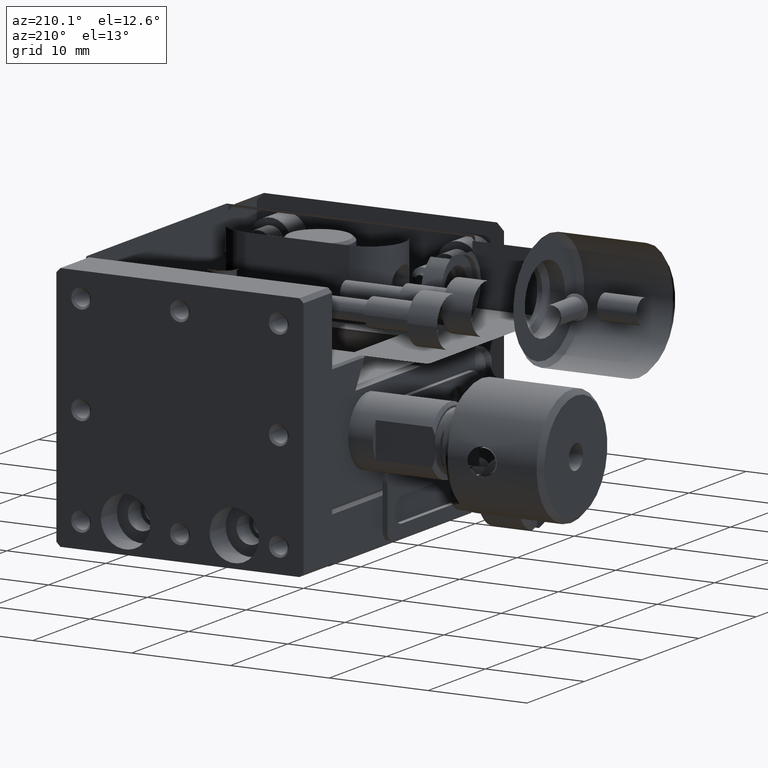
[diagram: clean part render]
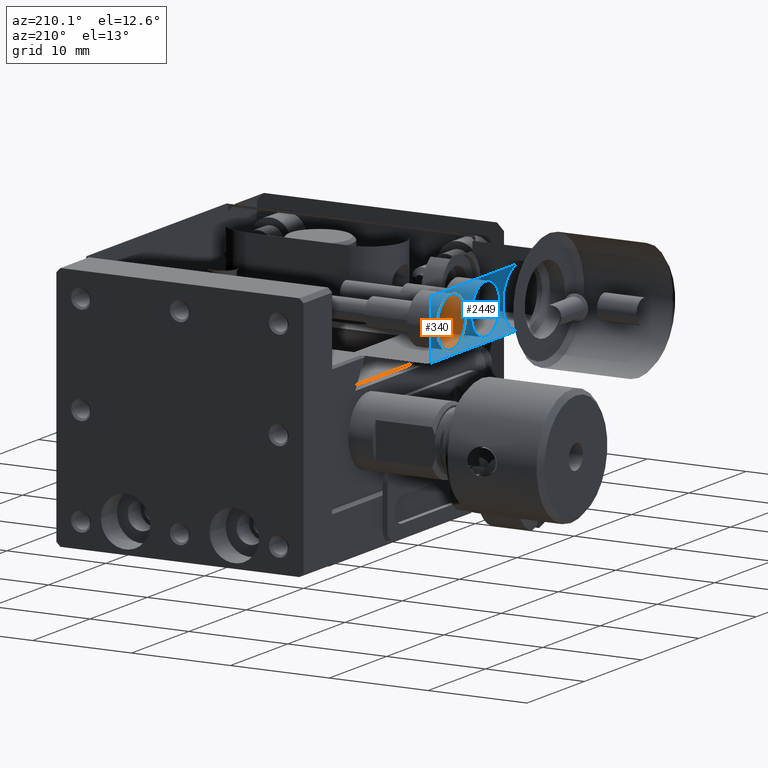
[diagram: same view with the hole feature highlighted: cylindrical wall and planar end face, labeled with their STEP entity ids]
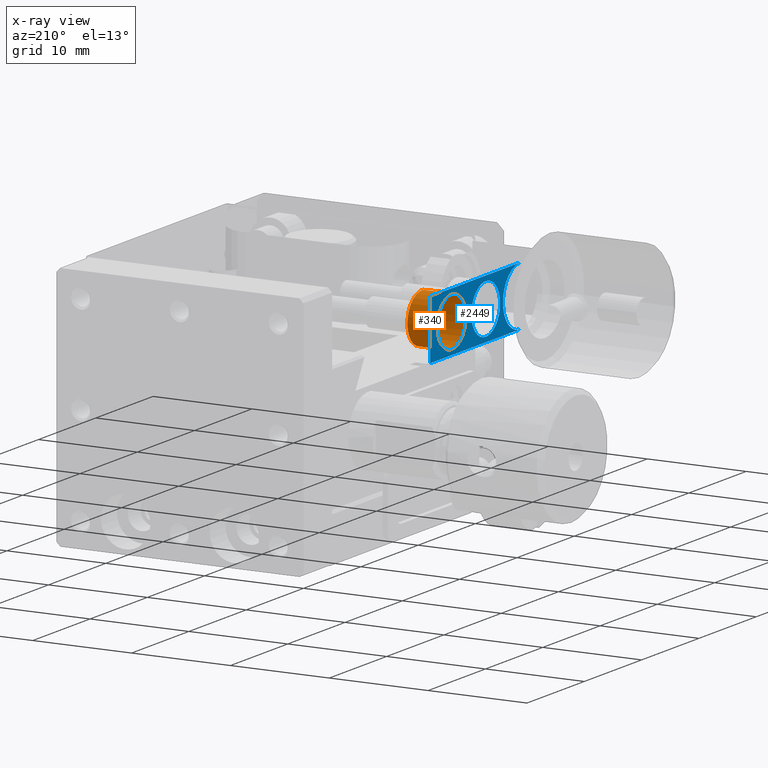
[diagram: x-ray of the same camera — body ghosted, the hole faces saturated]
A machine part, auxiliary view. The highlighted faces form one hole feature of diameter 5 mm: the cylindrical wall (entity #340, orange) and its adjacent planar end face (entity #2449, blue) — they share a circular edge in the B-rep.
The next image is the same camera in x-ray (body ghosted, the hole faces saturated) — the bore reads through the body.
Wall:
#62 = ORIENTED_EDGE ( 'NONE', *, *, #7502, .T. ) ;
#70 = CIRCLE ( 'NONE', #6276, 2.500000000000002220 ) ;
#340 = ADVANCED_FACE ( 'NONE', ( #3688, #6599 ), #753, .T. ) ;
#346 = ORIENTED_EDGE ( 'NONE', *, *, #8977, .F. ) ;
#349 = CIRCLE ( 'NONE', #9133, 2.500000000000002220 ) ;
#372 = EDGE_LOOP ( 'NONE', ( #62 ) ) ;
#466 = EDGE_LOOP ( 'NONE', ( #346 ) ) ;
#656 = CARTESIAN_POINT ( 'NONE',  ( -8.000000000000000000, 40.50000000000000000, -3.500000000000000000 ) ) ;
#702 = CARTESIAN_POINT ( 'NONE',  ( -8.000000000000000000, 38.00000000000000000, -3.500000000000000000 ) ) ;
#753 = CYLINDRICAL_SURFACE ( 'NONE', #1624, 2.500000000000002220 ) ;
#1624 = AXIS2_PLACEMENT_3D ( 'NONE', #702, #8726, #3639 ) ;
#2176 = VERTEX_POINT ( 'NONE', #656 ) ;
#2323 = VERTEX_POINT ( 'NONE', #2417 ) ;
#2417 = CARTESIAN_POINT ( 'NONE',  ( -5.000000000000000000, 40.50000000000000711, -3.500000000000000000 ) ) ;
#3639 = DIRECTION ( 'NONE',  ( -1.387778780781444492E-15, 1.000000000000000000, 0.000000000000000000 ) ) ;
#3688 = FACE_OUTER_BOUND ( 'NONE', #372, .T. ) ;
#3743 = DIRECTION ( 'NONE',  ( -1.387778780781444492E-15, 1.000000000000000000, 0.000000000000000000 ) ) ;
#5309 = DIRECTION ( 'NONE',  ( -1.000000000000000000, -1.646397119512899904E-15, -0.000000000000000000 ) ) ;
#6276 = AXIS2_PLACEMENT_3D ( 'NONE', #6700, #8875, #3743 ) ;
#6315 = CARTESIAN_POINT ( 'NONE',  ( -4.999999999999995559, 38.00000000000000711, -3.500000000000000000 ) ) ;
#6599 = FACE_OUTER_BOUND ( 'NONE', #466, .T. ) ;
#6700 = CARTESIAN_POINT ( 'NONE',  ( -7.999999999999996447, 38.00000000000000000, -3.500000000000000000 ) ) ;
#7502 = EDGE_CURVE ( 'NONE', #2323, #2323, #349, .T. ) ;
#7589 = DIRECTION ( 'NONE',  ( -1.734723475976805517E-15, 1.000000000000000000, 0.000000000000000000 ) ) ;
#8726 = DIRECTION ( 'NONE',  ( -1.000000000000000000, -1.646397119512899904E-15, -0.000000000000000000 ) ) ;
#8875 = DIRECTION ( 'NONE',  ( -1.000000000000000000, -1.646397119512899904E-15, -0.000000000000000000 ) ) ;
#8977 = EDGE_CURVE ( 'NONE', #2176, #2176, #70, .T. ) ;
#9133 = AXIS2_PLACEMENT_3D ( 'NONE', #6315, #5309, #7589 ) ;
End face:
#70 = CIRCLE ( 'NONE', #6276, 2.500000000000002220 ) ;
#293 = EDGE_CURVE ( 'NONE', #5091, #2915, #7210, .T. ) ;
#656 = CARTESIAN_POINT ( 'NONE',  ( -8.000000000000000000, 40.50000000000000000, -3.500000000000000000 ) ) ;
#666 = CARTESIAN_POINT ( 'NONE',  ( -8.000000000000000000, 29.49999999999997513, -3.500000000000000000 ) ) ;
#703 = DIRECTION ( 'NONE',  ( 1.387778780781446464E-15, -1.000000000000000000, 0.000000000000000000 ) ) ;
#805 = DIRECTION ( 'NONE',  ( -0.000000000000000000, -0.000000000000000000, 1.000000000000000000 ) ) ;
#1418 = LINE ( 'NONE', #1561, #1658 ) ;
#1458 = CARTESIAN_POINT ( 'NONE',  ( -8.000000000000000000, 15.00000000000000000, -0.5000000000000000000 ) ) ;
#1542 = EDGE_CURVE ( 'NONE', #7898, #3998, #1984, .T. ) ;
#1561 = CARTESIAN_POINT ( 'NONE',  ( -8.000000000000000000, 41.70000000000000284, -6.500000000000000888 ) ) ;
#1590 = ORIENTED_EDGE ( 'NONE', *, *, #8977, .T. ) ;
#1594 = CARTESIAN_POINT ( 'NONE',  ( -8.000000000000000000, 20.80000000000000782, -6.500000000000000888 ) ) ;
#1658 = VECTOR ( 'NONE', #805, 1000.000000000000000 ) ;
#1778 = FACE_BOUND ( 'NONE', #1963, .T. ) ;
#1928 = ORIENTED_EDGE ( 'NONE', *, *, #5695, .T. ) ;
#1963 = EDGE_LOOP ( 'NONE', ( #1590 ) ) ;
#1984 = LINE ( 'NONE', #9290, #7986 ) ;
#2074 = DIRECTION ( 'NONE',  ( 0.000000000000000000, 1.000000000000000000, 0.000000000000000000 ) ) ;
#2176 = VERTEX_POINT ( 'NONE', #656 ) ;
#2449 = ADVANCED_FACE ( 'NONE', ( #1778, #5198, #5294 ), #6817, .T. ) ;
#2792 = DIRECTION ( 'NONE',  ( -1.000000000000000000, 0.000000000000000000, 0.000000000000000000 ) ) ;
#2887 = CARTESIAN_POINT ( 'NONE',  ( -8.000000000000003553, 31.99999999999997158, -3.500000000000000000 ) ) ;
#2915 = VERTEX_POINT ( 'NONE', #3455 ) ;
#3455 = CARTESIAN_POINT ( 'NONE',  ( -8.000000000000000000, 41.70000000000000284, -0.5000000000000001110 ) ) ;
#3636 = EDGE_CURVE ( 'NONE', #3998, #2915, #1418, .T. ) ;
#3654 = AXIS2_PLACEMENT_3D ( 'NONE', #2887, #8678, #703 ) ;
#3743 = DIRECTION ( 'NONE',  ( -1.387778780781444492E-15, 1.000000000000000000, 0.000000000000000000 ) ) ;
#3774 = DIRECTION ( 'NONE',  ( 0.000000000000000000, 0.000000000000000000, -1.000000000000000000 ) ) ;
#3920 = ORIENTED_EDGE ( 'NONE', *, *, #1542, .T. ) ;
#3998 = VERTEX_POINT ( 'NONE', #7943 ) ;
#4424 = CIRCLE ( 'NONE', #3654, 2.499999999999998668 ) ;
#4802 = ORIENTED_EDGE ( 'NONE', *, *, #3636, .T. ) ;
#4974 = DIRECTION ( 'NONE',  ( 0.000000000000000000, 0.000000000000000000, 1.000000000000000000 ) ) ;
#5091 = VERTEX_POINT ( 'NONE', #5648 ) ;
#5198 = FACE_BOUND ( 'NONE', #6145, .T. ) ;
#5294 = FACE_OUTER_BOUND ( 'NONE', #6383, .T. ) ;
#5648 = CARTESIAN_POINT ( 'NONE',  ( -8.000000000000000000, 26.00000000000000000, -0.5000000000000000000 ) ) ;
#5695 = EDGE_CURVE ( 'NONE', #7970, #7970, #4424, .T. ) ;
#5731 = EDGE_CURVE ( 'NONE', #5091, #7898, #9109, .T. ) ;
#5787 = CARTESIAN_POINT ( 'NONE',  ( -8.000000000000000000, 26.00000000000000000, -3.500000000000000000 ) ) ;
#6019 = VECTOR ( 'NONE', #2074, 1000.000000000000000 ) ;
#6145 = EDGE_LOOP ( 'NONE', ( #1928 ) ) ;
#6276 = AXIS2_PLACEMENT_3D ( 'NONE', #6700, #8875, #3743 ) ;
#6383 = EDGE_LOOP ( 'NONE', ( #7217, #6672, #3920, #4802 ) ) ;
#6391 = CARTESIAN_POINT ( 'NONE',  ( -8.000000000000000000, 26.00000000000000000, -6.500000000000000888 ) ) ;
#6672 = ORIENTED_EDGE ( 'NONE', *, *, #5731, .T. ) ;
#6700 = CARTESIAN_POINT ( 'NONE',  ( -7.999999999999996447, 38.00000000000000000, -3.500000000000000000 ) ) ;
#6817 = PLANE ( 'NONE',  #9204 ) ;
#7025 = DIRECTION ( 'NONE',  ( 0.000000000000000000, 1.000000000000000000, 0.000000000000000000 ) ) ;
#7152 = AXIS2_PLACEMENT_3D ( 'NONE', #5787, #2792, #4974 ) ;
#7210 = LINE ( 'NONE', #1458, #6019 ) ;
#7217 = ORIENTED_EDGE ( 'NONE', *, *, #293, .F. ) ;
#7898 = VERTEX_POINT ( 'NONE', #6391 ) ;
#7943 = CARTESIAN_POINT ( 'NONE',  ( -8.000000000000000000, 41.70000000000000284, -6.500000000000001776 ) ) ;
#7970 = VERTEX_POINT ( 'NONE', #666 ) ;
#7986 = VECTOR ( 'NONE', #7025, 1000.000000000000000 ) ;
#8190 = DIRECTION ( 'NONE',  ( 1.000000000000000000, 0.000000000000000000, 0.000000000000000000 ) ) ;
#8678 = DIRECTION ( 'NONE',  ( -1.000000000000000000, -1.646397119512899904E-15, -0.000000000000000000 ) ) ;
#8875 = DIRECTION ( 'NONE',  ( -1.000000000000000000, -1.646397119512899904E-15, -0.000000000000000000 ) ) ;
#8977 = EDGE_CURVE ( 'NONE', #2176, #2176, #70, .T. ) ;
#9109 = CIRCLE ( 'NONE', #7152, 3.000000000000000000 ) ;
#9204 = AXIS2_PLACEMENT_3D ( 'NONE', #1594, #8190, #3774 ) ;
#9290 = CARTESIAN_POINT ( 'NONE',  ( -8.000000000000000000, 15.00000000000000000, -6.500000000000000888 ) ) ;